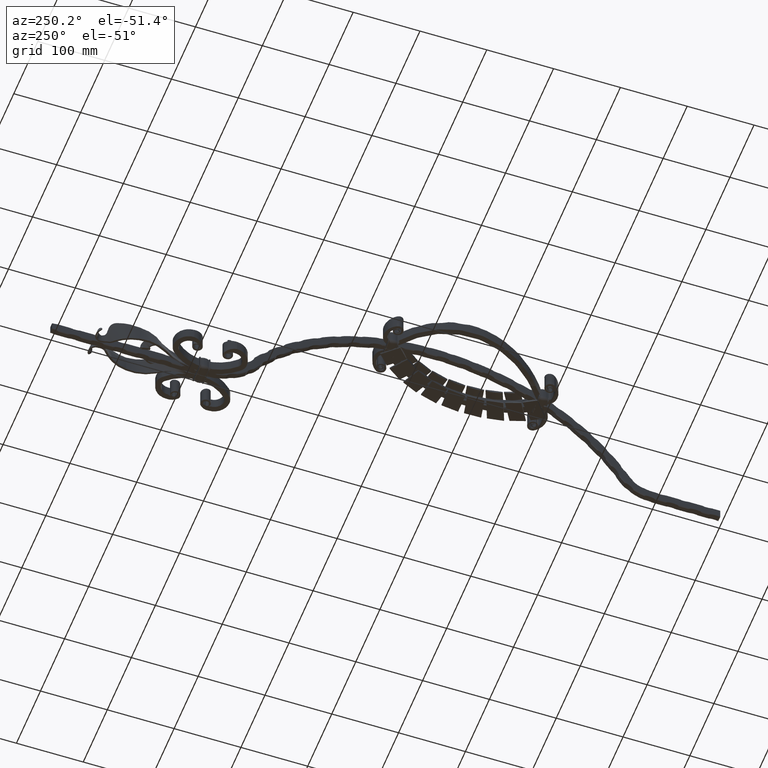
[diagram: clean part render]
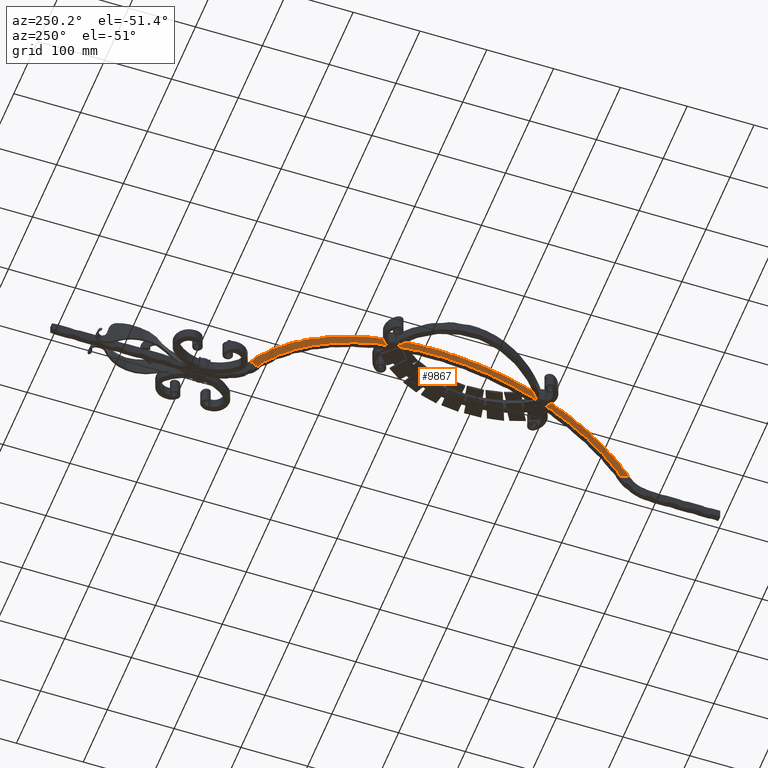
[diagram: same view with one face highlighted and labeled with its STEP entity id]
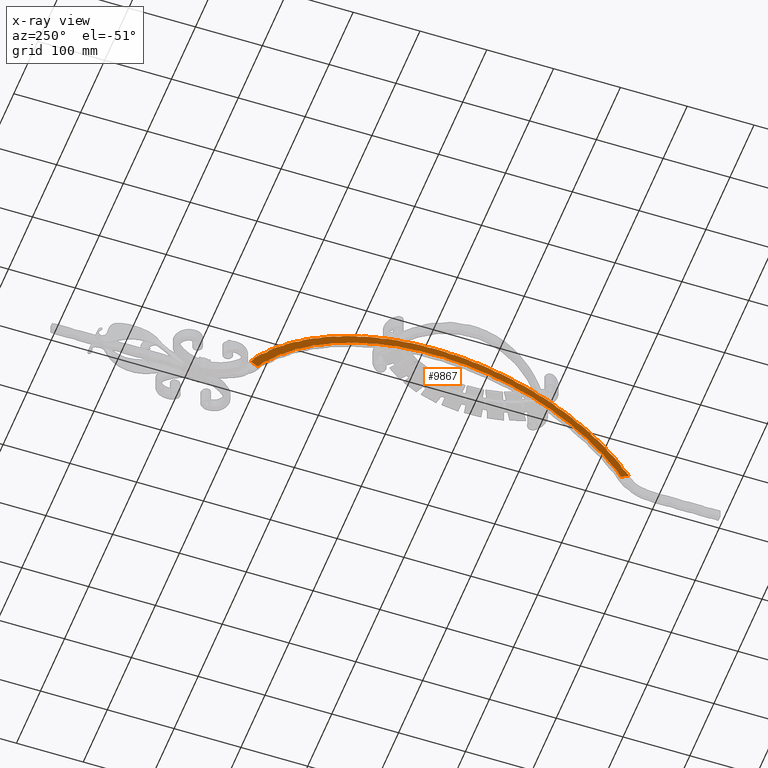
[diagram: x-ray of the same camera — body ghosted, the highlighted face saturated]
A machine part, auxiliary view. The second image highlights one B-rep face of the part: STEP entity #9867.
The next image is the same camera in x-ray: the body ghosted, the highlighted face saturated — about 0% of this face is hidden behind the body in this view.
In plain terms, the highlighted planar face has unit normal (-1, -0, 0).
Its self-contained STEP definition (entity closure, byte-faithful):
#152 = AXIS2_PLACEMENT_3D ( 'NONE', #6592, #6826, #24132 ) ;
#206 = AXIS2_PLACEMENT_3D ( 'NONE', #39800, #28356, #73636 ) ;
#332 = DIRECTION ( 'NONE',  ( 0.000000000000000000, 0.000000000000000000, 1.000000000000000000 ) ) ;
#465 = CARTESIAN_POINT ( 'NONE',  ( -4.000000000000000000, 426.4705882352941444, -147.6278396268994300 ) ) ;
#520 = ORIENTED_EDGE ( 'NONE', *, *, #7583, .T. ) ;
#575 = DIRECTION ( 'NONE',  ( 0.000000000000000000, 0.000000000000000000, 1.000000000000000000 ) ) ;
#640 = AXIS2_PLACEMENT_3D ( 'NONE', #55175, #4286, #9706 ) ;
#666 = CARTESIAN_POINT ( 'NONE',  ( -4.000000000000023093, 572.1140279110070423, 142.4949322133250575 ) ) ;
#719 = CARTESIAN_POINT ( 'NONE',  ( -4.000000000000048850, 687.3501513787601880, 45.56917845283773971 ) ) ;
#833 = DIRECTION ( 'NONE',  ( 3.336006684570783348E-17, 0.8325554022476037153, -0.5539417859200828076 ) ) ;
#1022 = CARTESIAN_POINT ( 'NONE',  ( -4.000000000000000888, 160.9058512339645688, 62.47733458781561211 ) ) ;
#1128 = CARTESIAN_POINT ( 'NONE',  ( -4.000000000000000000, 297.2928697591530636, 165.3928159530158268 ) ) ;
#1163 = AXIS2_PLACEMENT_3D ( 'NONE', #67733, #10081, #44641 ) ;
#1187 = DIRECTION ( 'NONE',  ( 0.000000000000000000, 0.000000000000000000, 1.000000000000000000 ) ) ;
#1226 = CIRCLE ( 'NONE', #8928, 324.6278396268995152 ) ;
#1257 = DIRECTION ( 'NONE',  ( -1.000000000000000000, -0.000000000000000000, 0.000000000000000000 ) ) ;
#1383 = AXIS2_PLACEMENT_3D ( 'NONE', #67014, #43651, #32452 ) ;
#1554 = CARTESIAN_POINT ( 'NONE',  ( -4.000000000000000000, 426.4705882352941444, -147.6278396268994300 ) ) ;
#1798 = DIRECTION ( 'NONE',  ( 1.000000000000000000, -6.526703566376200174E-17, -3.496812018500327494E-17 ) ) ;
#1874 = CARTESIAN_POINT ( 'NONE',  ( -4.000000000000000000, 426.4705882352941444, -147.6278396268994300 ) ) ;
#1943 = AXIS2_PLACEMENT_3D ( 'NONE', #63925, #12476, #40593 ) ;
#1967 = DIRECTION ( 'NONE',  ( 1.000000000000000000, 1.347094601856986619E-17, -1.166077757606807157E-18 ) ) ;
#1999 = CARTESIAN_POINT ( 'NONE',  ( -4.000000000000003553, 440.9842460692563009, 176.6753950117742704 ) ) ;
#2120 = AXIS2_PLACEMENT_3D ( 'NONE', #52678, #29789, #52197 ) ;
#2151 = CARTESIAN_POINT ( 'NONE',  ( -4.000000000000000888, 149.6171718922792877, 19.96441687910802187 ) ) ;
#2255 = ORIENTED_EDGE ( 'NONE', *, *, #65679, .T. ) ;
#2426 = CARTESIAN_POINT ( 'NONE',  ( -4.000000000000000888, 124.7524150278455437, 54.70178627800613924 ) ) ;
#2669 = EDGE_CURVE ( 'NONE', #49515, #11266, #54809, .T. ) ;
#2749 = AXIS2_PLACEMENT_3D ( 'NONE', #59353, #25774, #65578 ) ;
#2948 = CIRCLE ( 'NONE', #34234, 338.6278396268994015 ) ;
#2952 = DIRECTION ( 'NONE',  ( 0.000000000000000000, 0.03755121730541614161, -0.9992947043184414735 ) ) ;
#2996 = ORIENTED_EDGE ( 'NONE', *, *, #45693, .T. ) ;
#3055 = CARTESIAN_POINT ( 'NONE',  ( -4.000000000000000000, 426.4705882352941444, -147.6278396268994300 ) ) ;
#3252 = DIRECTION ( 'NONE',  ( 0.000000000000000000, 0.000000000000000000, 1.000000000000000000 ) ) ;
#3482 = DIRECTION ( 'NONE',  ( 0.000000000000000000, -5.420679557407433838E-14, 1.000000000000000000 ) ) ;
#3559 = AXIS2_PLACEMENT_3D ( 'NONE', #51046, #22943, #28675 ) ;
#3648 = AXIS2_PLACEMENT_3D ( 'NONE', #37031, #60420, #71622 ) ;
#3826 = CARTESIAN_POINT ( 'NONE',  ( -4.000000000000055955, 171.5220999674228324, 53.33111785137543848 ) ) ;
#3953 = VERTEX_POINT ( 'NONE', #67401 ) ;
#3957 = VERTEX_POINT ( 'NONE', #33328 ) ;
#3971 = AXIS2_PLACEMENT_3D ( 'NONE', #3055, #13947, #42803 ) ;
#4003 = CARTESIAN_POINT ( 'NONE',  ( -4.000000000000000000, 426.4705882352941444, -147.6278396268994300 ) ) ;
#4017 = DIRECTION ( 'NONE',  ( -1.000000000000000000, -0.000000000000000000, 0.000000000000000000 ) ) ;
#4022 = AXIS2_PLACEMENT_3D ( 'NONE', #52199, #34560, #575 ) ;
#4025 = CIRCLE ( 'NONE', #2749, 25.99999999999999289 ) ;
#4082 = VERTEX_POINT ( 'NONE', #56956 ) ;
#4208 = DIRECTION ( 'NONE',  ( 1.000000000000000000, 0.000000000000000000, -0.000000000000000000 ) ) ;
#4286 = DIRECTION ( 'NONE',  ( 1.000000000000000000, 3.676091962525594035E-17, -9.153497749603969293E-18 ) ) ;
#4457 = DIRECTION ( 'NONE',  ( -1.000000000000000000, -0.000000000000000000, 0.000000000000000000 ) ) ;
#4479 = DIRECTION ( 'NONE',  ( 0.000000000000000000, 0.000000000000000000, 1.000000000000000000 ) ) ;
#4534 = CIRCLE ( 'NONE', #55735, 338.6278396268994015 ) ;
#4636 = CIRCLE ( 'NONE', #10510, 26.00000000000000000 ) ;
#4825 = VERTEX_POINT ( 'NONE', #56300 ) ;
#5001 = CIRCLE ( 'NONE', #206, 25.99999999999999289 ) ;
#5082 = AXIS2_PLACEMENT_3D ( 'NONE', #56214, #73402, #73163 ) ;
#5288 = AXIS2_PLACEMENT_3D ( 'NONE', #54621, #8913, #43217 ) ;
#5568 = CIRCLE ( 'NONE', #49816, 26.00000000000000355 ) ;
#5569 = AXIS2_PLACEMENT_3D ( 'NONE', #56759, #22409, #22165 ) ;
#5864 = EDGE_CURVE ( 'NONE', #32729, #32261, #48781, .T. ) ;
#6104 = DIRECTION ( 'NONE',  ( 0.000000000000000000, 0.2452857819312131427, -0.9694508162781614313 ) ) ;
#6109 = CARTESIAN_POINT ( 'NONE',  ( -4.000000000000000000, 426.4705882352941444, -147.6278396268994300 ) ) ;
#6212 = AXIS2_PLACEMENT_3D ( 'NONE', #18482, #63772, #47360 ) ;
#6229 = DIRECTION ( 'NONE',  ( 0.000000000000000000, 0.000000000000000000, 1.000000000000000000 ) ) ;
#6244 = CIRCLE ( 'NONE', #28302, 25.99999999999996447 ) ;
#6247 = DIRECTION ( 'NONE',  ( 0.000000000000000000, 0.000000000000000000, 1.000000000000000000 ) ) ;
#6270 = CIRCLE ( 'NONE', #60920, 324.6278396268995152 ) ;
#6592 = CARTESIAN_POINT ( 'NONE',  ( -4.000000000000000000, 426.4705882352941444, -147.6278396268994300 ) ) ;
#6653 = ORIENTED_EDGE ( 'NONE', *, *, #37349, .T. ) ;
#6697 = DIRECTION ( 'NONE',  ( -1.000000000000000000, -0.000000000000000000, 0.000000000000000000 ) ) ;
#6784 = DIRECTION ( 'NONE',  ( 1.000000000000000000, 0.000000000000000000, -0.000000000000000000 ) ) ;
#6826 = DIRECTION ( 'NONE',  ( 1.000000000000000000, 0.000000000000000000, -0.000000000000000000 ) ) ;
#6851 = VERTEX_POINT ( 'NONE', #21097 ) ;
#6916 = ORIENTED_EDGE ( 'NONE', *, *, #68783, .T. ) ;
#7198 = DIRECTION ( 'NONE',  ( 1.000000000000000000, 0.000000000000000000, 0.000000000000000000 ) ) ;
#7243 = EDGE_CURVE ( 'NONE', #45264, #16695, #56076, .T. ) ;
#7252 = EDGE_CURVE ( 'NONE', #68606, #27000, #17846, .T. ) ;
#7269 = DIRECTION ( 'NONE',  ( 1.000000000000000000, -1.114785359418995452E-17, -7.966804709259143197E-19 ) ) ;
#7503 = VECTOR ( 'NONE', #22232, 1000.000000000000000 ) ;
#7508 = DIRECTION ( 'NONE',  ( 0.000000000000000000, 8.549967756163145212E-16, 1.000000000000000000 ) ) ;
#7583 = EDGE_CURVE ( 'NONE', #63597, #12480, #69383, .T. ) ;
#7645 = CIRCLE ( 'NONE', #55036, 338.6278396268994015 ) ;
#7669 = DIRECTION ( 'NONE',  ( 0.000000000000000000, -0.1718372646633504752, -0.9851253496246138441 ) ) ;
#7688 = CARTESIAN_POINT ( 'NONE',  ( -4.000000000000000000, 426.4705882352941444, -147.6278396268994300 ) ) ;
#7749 = DIRECTION ( 'NONE',  ( 1.000000000000000000, 4.382359191956283565E-17, -1.339321560717953740E-17 ) ) ;
#7785 = AXIS2_PLACEMENT_3D ( 'NONE', #18149, #1798, #833 ) ;
#8027 = CARTESIAN_POINT ( 'NONE',  ( -4.000000000000017764, 554.8015900863533716, 150.5573179928778416 ) ) ;
#8037 = DIRECTION ( 'NONE',  ( 3.336006684570780883E-17, -0.7197607560805576732, -0.6942221935420561651 ) ) ;
#8109 = DIRECTION ( 'NONE',  ( 0.000000000000000000, 0.6802587746895706333, 0.7329720318387625833 ) ) ;
#8316 = CARTESIAN_POINT ( 'NONE',  ( -4.000000000000000888, 294.8236193829861804, 191.2752965640353011 ) ) ;
#8451 = VERTEX_POINT ( 'NONE', #29553 ) ;
#8632 = CARTESIAN_POINT ( 'NONE',  ( -4.000000000000017764, 538.5316547730333241, 130.2770516016199736 ) ) ;
#8684 = CIRCLE ( 'NONE', #5082, 25.99999999999999289 ) ;
#8742 = ORIENTED_EDGE ( 'NONE', *, *, #66254, .T. ) ;
#8842 = VERTEX_POINT ( 'NONE', #28509 ) ;
#8913 = DIRECTION ( 'NONE',  ( 1.000000000000000000, 0.000000000000000000, 0.000000000000000000 ) ) ;
#8928 = AXIS2_PLACEMENT_3D ( 'NONE', #42434, #18798, #58588 ) ;
#8947 = EDGE_CURVE ( 'NONE', #39254, #49515, #26278, .T. ) ;
#9060 = CARTESIAN_POINT ( 'NONE',  ( -4.000000000000000000, 426.4705882352941444, -147.6278396268994300 ) ) ;
#9114 = DIRECTION ( 'NONE',  ( 0.000000000000000000, 0.1370943074738605050, 0.9905579997447209184 ) ) ;
#9187 = CIRCLE ( 'NONE', #17087, 324.6278396268995152 ) ;
#9190 = ORIENTED_EDGE ( 'NONE', *, *, #60034, .T. ) ;
#9523 = CARTESIAN_POINT ( 'NONE',  ( -4.000000000000000000, 426.4705882352941444, -147.6278396268994300 ) ) ;
#9602 = CARTESIAN_POINT ( 'NONE',  ( -4.000000000000000888, 581.9442069146263066, 181.0027020683511694 ) ) ;
#9632 = CARTESIAN_POINT ( 'NONE',  ( -4.000000000000000888, 513.3135617049681514, 179.6749433269376652 ) ) ;
#9706 = DIRECTION ( 'NONE',  ( 0.000000000000000000, -0.4689274135762495632, -0.8832367071157589677 ) ) ;
#9784 = ORIENTED_EDGE ( 'NONE', *, *, #23700, .T. ) ;
#9867 = ADVANCED_FACE ( 'NONE', ( #47019 ), #27550, .T. ) ;
#10081 = DIRECTION ( 'NONE',  ( 1.000000000000000000, -6.034991296655652333E-17, -2.835915265374370119E-17 ) ) ;
#10389 = VERTEX_POINT ( 'NONE', #52210 ) ;
#10478 = AXIS2_PLACEMENT_3D ( 'NONE', #42225, #53642, #3482 ) ;
#10507 = CARTESIAN_POINT ( 'NONE',  ( -4.000000000000000000, 426.4705882352941444, -147.6278396268994300 ) ) ;
#10510 = AXIS2_PLACEMENT_3D ( 'NONE', #19333, #7269, #30033 ) ;
#10638 = CIRCLE ( 'NONE', #55345, 25.99999999999999289 ) ;
#10916 = CARTESIAN_POINT ( 'NONE',  ( -4.000000000000000000, 426.4705882352941444, -147.6278396268994300 ) ) ;
#11021 = CIRCLE ( 'NONE', #10478, 324.6278396268995152 ) ;
#11266 = VERTEX_POINT ( 'NONE', #19701 ) ;
#11267 = ORIENTED_EDGE ( 'NONE', *, *, #5864, .T. ) ;
#11351 = DIRECTION ( 'NONE',  ( -1.000000000000000000, -0.000000000000000000, 0.000000000000000000 ) ) ;
#11525 = CARTESIAN_POINT ( 'NONE',  ( -4.000000000000013323, 352.9085654521753099, 142.8381980754930396 ) ) ;
#11555 = VERTEX_POINT ( 'NONE', #61966 ) ;
#11886 = CARTESIAN_POINT ( 'NONE',  ( -4.000000000000000888, 220.6701216781705455, 121.2866109614825660 ) ) ;
#11914 = DIRECTION ( 'NONE',  ( 1.000000000000000000, -2.709751309814805919E-17, -4.832186591787698804E-18 ) ) ;
#11955 = VERTEX_POINT ( 'NONE', #61148 ) ;
#12132 = CARTESIAN_POINT ( 'NONE',  ( -4.000000000000020428, 321.2245306770981870, 159.4657969553079795 ) ) ;
#12143 = VERTEX_POINT ( 'NONE', #50667 ) ;
#12278 = CARTESIAN_POINT ( 'NONE',  ( -4.000000000000000888, 209.0349680773688590, 111.9690880454432573 ) ) ;
#12325 = CIRCLE ( 'NONE', #60325, 26.00000000000001421 ) ;
#12386 = CARTESIAN_POINT ( 'NONE',  ( -4.000000000000020428, 322.8061072014730257, 133.5139450811633139 ) ) ;
#12434 = AXIS2_PLACEMENT_3D ( 'NONE', #57164, #29031, #68874 ) ;
#12476 = DIRECTION ( 'NONE',  ( 1.000000000000000000, 0.000000000000000000, -0.000000000000000000 ) ) ;
#12480 = VERTEX_POINT ( 'NONE', #3826 ) ;
#12614 = DIRECTION ( 'NONE',  ( 0.000000000000000000, 0.8143712872288110249, 0.5803442138397603145 ) ) ;
#12628 = AXIS2_PLACEMENT_3D ( 'NONE', #33826, #40047, #332 ) ;
#12731 = DIRECTION ( 'NONE',  ( 0.000000000000000000, 0.000000000000000000, 1.000000000000000000 ) ) ;
#12839 = CIRCLE ( 'NONE', #44066, 338.6278396268994015 ) ;
#12905 = DIRECTION ( 'NONE',  ( -1.000000000000000000, -0.000000000000000000, 0.000000000000000000 ) ) ;
#13248 = CARTESIAN_POINT ( 'NONE',  ( -4.000000000000000888, 146.7878555126258959, 84.31038743922103151 ) ) ;
#13479 = ORIENTED_EDGE ( 'NONE', *, *, #16670, .T. ) ;
#13745 = DIRECTION ( 'NONE',  ( 1.000000000000000000, 0.000000000000000000, 0.000000000000000000 ) ) ;
#13800 = ORIENTED_EDGE ( 'NONE', *, *, #60694, .T. ) ;
#13820 = ORIENTED_EDGE ( 'NONE', *, *, #68327, .T. ) ;
#13896 = CARTESIAN_POINT ( 'NONE',  ( -4.000000000000000000, 426.4705882352941444, -147.6278396268994300 ) ) ;
#13947 = DIRECTION ( 'NONE',  ( 1.000000000000000000, 0.000000000000000000, -0.000000000000000000 ) ) ;
#13960 = AXIS2_PLACEMENT_3D ( 'NONE', #42176, #54064, #54316 ) ;
#14081 = DIRECTION ( 'NONE',  ( 1.000000000000000000, -2.943776032770732086E-18, -5.529068489316881699E-20 ) ) ;
#14146 = CARTESIAN_POINT ( 'NONE',  ( -4.000000000000027534, 594.1225014173206773, 100.7627982588815172 ) ) ;
#14233 = DIRECTION ( 'NONE',  ( 0.000000000000000000, -0.3628234939914710133, 0.9318578819797689317 ) ) ;
#14323 = ORIENTED_EDGE ( 'NONE', *, *, #50315, .T. ) ;
#14428 = CIRCLE ( 'NONE', #16980, 338.6278396268994015 ) ;
#14442 = ORIENTED_EDGE ( 'NONE', *, *, #22311, .T. ) ;
#14483 = CARTESIAN_POINT ( 'NONE',  ( -4.000000000000059508, 160.4938091986029747, 38.48929358252643596 ) ) ;
#14531 = VERTEX_POINT ( 'NONE', #41275 ) ;
#15109 = ORIENTED_EDGE ( 'NONE', *, *, #35821, .T. ) ;
#15148 = CIRCLE ( 'NONE', #54314, 26.00000000000000711 ) ;
#15448 = CIRCLE ( 'NONE', #20314, 25.99999999999998579 ) ;
#15536 = DIRECTION ( 'NONE',  ( 1.000000000000000000, 0.000000000000000000, 0.000000000000000000 ) ) ;
#15570 = ORIENTED_EDGE ( 'NONE', *, *, #58371, .T. ) ;
#15677 = AXIS2_PLACEMENT_3D ( 'NONE', #30706, #53343, #47425 ) ;
#15751 = ORIENTED_EDGE ( 'NONE', *, *, #18588, .T. ) ;
#15755 = CIRCLE ( 'NONE', #72244, 25.99999999999999289 ) ;
#15998 = CARTESIAN_POINT ( 'NONE',  ( -4.000000000000000888, 702.9278986532050340, 46.01524705753612210 ) ) ;
#16009 = EDGE_CURVE ( 'NONE', #65866, #69060, #2948, .T. ) ;
#16116 = EDGE_CURVE ( 'NONE', #31448, #28160, #61626, .T. ) ;
#16430 = AXIS2_PLACEMENT_3D ( 'NONE', #55342, #27483, #44435 ) ;
#16543 = CARTESIAN_POINT ( 'NONE',  ( -4.000000000000047962, 205.1122891533242978, 89.82476130298131523 ) ) ;
#16670 = EDGE_CURVE ( 'NONE', #18717, #27944, #72306, .T. ) ;
#16695 = VERTEX_POINT ( 'NONE', #52230 ) ;
#16980 = AXIS2_PLACEMENT_3D ( 'NONE', #71543, #4457, #44205 ) ;
#17004 = CARTESIAN_POINT ( 'NONE',  ( -4.000000000000000000, 397.3075476709288409, 189.7418846155439383 ) ) ;
#17041 = CIRCLE ( 'NONE', #65046, 338.6278396268994015 ) ;
#17087 = AXIS2_PLACEMENT_3D ( 'NONE', #1874, #58258, #52293 ) ;
#17286 = ORIENTED_EDGE ( 'NONE', *, *, #41514, .T. ) ;
#17328 = EDGE_CURVE ( 'NONE', #32261, #71772, #45539, .T. ) ;
#17530 = EDGE_CURVE ( 'NONE', #58254, #70039, #65118, .T. ) ;
#17537 = DIRECTION ( 'NONE',  ( -1.000000000000000000, -0.000000000000000000, 0.000000000000000000 ) ) ;
#17767 = VERTEX_POINT ( 'NONE', #54763 ) ;
#17781 = DIRECTION ( 'NONE',  ( 1.000000000000000000, 0.000000000000000000, 0.000000000000000000 ) ) ;
#17846 = CIRCLE ( 'NONE', #67339, 324.6278396268995152 ) ;
#18149 = CARTESIAN_POINT ( 'NONE',  ( -4.000000000000059508, 176.7844507586344207, 18.22565625941544099 ) ) ;
#18305 = ORIENTED_EDGE ( 'NONE', *, *, #60129, .T. ) ;
#18482 = CARTESIAN_POINT ( 'NONE',  ( -4.000000000000000888, 199.2825218319721330, 136.0707434290605136 ) ) ;
#18588 = EDGE_CURVE ( 'NONE', #69986, #28667, #4636, .T. ) ;
#18717 = VERTEX_POINT ( 'NONE', #31029 ) ;
#18739 = ORIENTED_EDGE ( 'NONE', *, *, #42157, .T. ) ;
#18798 = DIRECTION ( 'NONE',  ( 1.000000000000000000, 0.000000000000000000, -0.000000000000000000 ) ) ;
#19333 = CARTESIAN_POINT ( 'NONE',  ( -4.000000000000007994, 383.8232628775402304, 148.9522122834969480 ) ) ;
#19467 = CIRCLE ( 'NONE', #29707, 324.6278396268995152 ) ;
#19495 = AXIS2_PLACEMENT_3D ( 'NONE', #67500, #33434, #39149 ) ;
#19507 = CIRCLE ( 'NONE', #23411, 25.99999999999999645 ) ;
#19515 = ORIENTED_EDGE ( 'NONE', *, *, #59109, .T. ) ;
#19701 = CARTESIAN_POINT ( 'NONE',  ( -4.000000000000000888, 650.8479176843302412, 105.9931922290959392 ) ) ;
#19731 = DIRECTION ( 'NONE',  ( 0.000000000000000000, 0.000000000000000000, 1.000000000000000000 ) ) ;
#19893 = ORIENTED_EDGE ( 'NONE', *, *, #34952, .T. ) ;
#20030 = EDGE_CURVE ( 'NONE', #49240, #65866, #54041, .T. ) ;
#20314 = AXIS2_PLACEMENT_3D ( 'NONE', #2426, #35928, #36410 ) ;
#20386 = CARTESIAN_POINT ( 'NONE',  ( -4.000000000000000000, 564.7962019197202608, 161.4592651982744371 ) ) ;
#20389 = VERTEX_POINT ( 'NONE', #45311 ) ;
#20516 = CIRCLE ( 'NONE', #32912, 324.6278396268995152 ) ;
#20654 = DIRECTION ( 'NONE',  ( 1.000000000000000000, 0.000000000000000000, -0.000000000000000000 ) ) ;
#21008 = CIRCLE ( 'NONE', #5569, 25.99999999999998579 ) ;
#21097 = CARTESIAN_POINT ( 'NONE',  ( -4.000000000000047073, 677.7574081055164470, 57.89142569958625728 ) ) ;
#21123 = VERTEX_POINT ( 'NONE', #34496 ) ;
#21210 = ORIENTED_EDGE ( 'NONE', *, *, #60007, .T. ) ;
#21229 = EDGE_CURVE ( 'NONE', #72093, #41746, #52203, .T. ) ;
#21238 = ORIENTED_EDGE ( 'NONE', *, *, #31114, .T. ) ;
#21314 = CARTESIAN_POINT ( 'NONE',  ( -4.000000000000000888, 148.7617034113778516, 20.48227176050276555 ) ) ;
#21350 = CIRCLE ( 'NONE', #3971, 324.6278396268995152 ) ;
#21351 = DIRECTION ( 'NONE',  ( 0.000000000000000000, 1.709993551232629042E-15, 1.000000000000000000 ) ) ;
#21720 = ORIENTED_EDGE ( 'NONE', *, *, #43037, .T. ) ;
#21952 = AXIS2_PLACEMENT_3D ( 'NONE', #33901, #62495, #40364 ) ;
#21975 = EDGE_CURVE ( 'NONE', #56309, #28464, #30775, .T. ) ;
#21991 = EDGE_CURVE ( 'NONE', #22427, #6851, #65502, .T. ) ;
#22165 = DIRECTION ( 'NONE',  ( 0.000000000000000000, 0.2370149812904263076, 0.9715059951662156079 ) ) ;
#22167 = VERTEX_POINT ( 'NONE', #49479 ) ;
#22173 = DIRECTION ( 'NONE',  ( 1.000000000000000000, -1.922884150880462241E-17, -2.394861240572535470E-18 ) ) ;
#22219 = CIRCLE ( 'NONE', #12434, 324.6278396268995152 ) ;
#22232 = DIRECTION ( 'NONE',  ( 1.084202172485504434E-16, 0.8190607261809106365, 0.5737068300342950122 ) ) ;
#22311 = EDGE_CURVE ( 'NONE', #51727, #31151, #35221, .T. ) ;
#22326 = CARTESIAN_POINT ( 'NONE',  ( -4.000000000000047962, 194.0833816396042550, 79.04245059985295541 ) ) ;
#22330 = AXIS2_PLACEMENT_3D ( 'NONE', #35877, #30143, #41631 ) ;
#22409 = DIRECTION ( 'NONE',  ( 1.000000000000000000, 0.000000000000000000, 0.000000000000000000 ) ) ;
#22427 = VERTEX_POINT ( 'NONE', #719 ) ;
#22525 = EDGE_CURVE ( 'NONE', #22167, #60231, #45055, .T. ) ;
#22754 = ORIENTED_EDGE ( 'NONE', *, *, #51531, .T. ) ;
#22943 = DIRECTION ( 'NONE',  ( 1.000000000000000000, 0.000000000000000000, 0.000000000000000000 ) ) ;
#23200 = CARTESIAN_POINT ( 'NONE',  ( -4.000000000000000888, 343.2437165539460011, 180.6130804310932092 ) ) ;
#23205 = CARTESIAN_POINT ( 'NONE',  ( -4.000000000000007994, 372.9101938387357222, 172.5510453935108615 ) ) ;
#23208 = EDGE_CURVE ( 'NONE', #58779, #24997, #5001, .T. ) ;
#23314 = DIRECTION ( 'NONE',  ( 0.000000000000000000, 0.3456596532675747513, -0.9383599544433575135 ) ) ;
#23319 = EDGE_CURVE ( 'NONE', #65537, #70100, #25365, .T. ) ;
#23349 = CIRCLE ( 'NONE', #36002, 324.6278396268995152 ) ;
#23400 = EDGE_CURVE ( 'NONE', #60628, #48987, #27207, .T. ) ;
#23411 = AXIS2_PLACEMENT_3D ( 'NONE', #8632, #26506, #59827 ) ;
#23590 = VERTEX_POINT ( 'NONE', #38539 ) ;
#23700 = EDGE_CURVE ( 'NONE', #42282, #60628, #28893, .T. ) ;
#23855 = CARTESIAN_POINT ( 'NONE',  ( -4.000000000000000000, 532.8414154462802799, 173.8594243336370084 ) ) ;
#23880 = CARTESIAN_POINT ( 'NONE',  ( -4.000000000000039968, 642.3292357293497616, 60.29621762772961802 ) ) ;
#24067 = VERTEX_POINT ( 'NONE', #24520 ) ;
#24132 = DIRECTION ( 'NONE',  ( 0.000000000000000000, 0.000000000000000000, 1.000000000000000000 ) ) ;
#24258 = AXIS2_PLACEMENT_3D ( 'NONE', #44317, #47469, #48942 ) ;
#24287 = EDGE_CURVE ( 'NONE', #8842, #57796, #63572, .T. ) ;
#24491 = EDGE_CURVE ( 'NONE', #28160, #22167, #12839, .T. ) ;
#24520 = CARTESIAN_POINT ( 'NONE',  ( -4.000000000000012434, 522.7427759057951562, 162.3961919286620912 ) ) ;
#24645 = VERTEX_POINT ( 'NONE', #30663 ) ;
#24748 = ORIENTED_EDGE ( 'NONE', *, *, #65033, .T. ) ;
#24820 = CARTESIAN_POINT ( 'NONE',  ( -4.000000000000000000, 426.4705882352941444, -147.6278396268994300 ) ) ;
#24997 = VERTEX_POINT ( 'NONE', #27439 ) ;
#25056 = CIRCLE ( 'NONE', #46235, 324.6278396268995152 ) ;
#25365 = CIRCLE ( 'NONE', #71173, 324.6278396268995152 ) ;
#25511 = VERTEX_POINT ( 'NONE', #31328 ) ;
#25566 = DIRECTION ( 'NONE',  ( 0.000000000000000000, -0.5590198455846863146, -0.8291542752965057606 ) ) ;
#25722 = CARTESIAN_POINT ( 'NONE',  ( -4.000000000000000000, 465.9339984276574569, 188.6926221745948453 ) ) ;
#25774 = DIRECTION ( 'NONE',  ( 1.000000000000000000, -3.466698598629286348E-17, -8.081744660857514412E-18 ) ) ;
#25940 = AXIS2_PLACEMENT_3D ( 'NONE', #12386, #11914, #23314 ) ;
#26008 = EDGE_CURVE ( 'NONE', #24067, #49458, #5568, .T. ) ;
#26105 = AXIS2_PLACEMENT_3D ( 'NONE', #32797, #72625, #21351 ) ;
#26111 = ORIENTED_EDGE ( 'NONE', *, *, #37811, .T. ) ;
#26278 = CIRCLE ( 'NONE', #3559, 25.99999999999996447 ) ;
#26286 = DIRECTION ( 'NONE',  ( 1.000000000000000000, -5.476643334162709815E-17, -2.230264353325078280E-17 ) ) ;
#26336 = CARTESIAN_POINT ( 'NONE',  ( -4.000000000000000888, 248.8765222911063120, 140.6934421262735952 ) ) ;
#26455 = CARTESIAN_POINT ( 'NONE',  ( -4.000000000000000000, 426.4705882352941444, -147.6278396268994300 ) ) ;
#26481 = ORIENTED_EDGE ( 'NONE', *, *, #21991, .T. ) ;
#26506 = DIRECTION ( 'NONE',  ( 1.000000000000000000, 2.929234958797520628E-17, -5.678298611878488443E-18 ) ) ;
#26535 = DIRECTION ( 'NONE',  ( 3.336006684570783964E-17, 0.6986082557097207379, -0.7155043710937208923 ) ) ;
#26552 = DIRECTION ( 'NONE',  ( -1.000000000000000000, -0.000000000000000000, 0.000000000000000000 ) ) ;
#26592 = EDGE_CURVE ( 'NONE', #3953, #23590, #17041, .T. ) ;
#26624 = CARTESIAN_POINT ( 'NONE',  ( -4.000000000000039968, 231.2164131104326259, 111.7156417971338414 ) ) ;
#26696 = AXIS2_PLACEMENT_3D ( 'NONE', #13248, #53019, #70466 ) ;
#26753 = ORIENTED_EDGE ( 'NONE', *, *, #34082, .T. ) ;
#26832 = DIRECTION ( 'NONE',  ( 0.000000000000000000, 0.000000000000000000, 1.000000000000000000 ) ) ;
#27000 = VERTEX_POINT ( 'NONE', #12132 ) ;
#27207 = CIRCLE ( 'NONE', #4022, 338.6278396268994015 ) ;
#27379 = CIRCLE ( 'NONE', #12628, 338.6278396268994015 ) ;
#27439 = CARTESIAN_POINT ( 'NONE',  ( -4.000000000000000888, 194.5759532003528136, 99.13863299933164797 ) ) ;
#27479 = AXIS2_PLACEMENT_3D ( 'NONE', #23880, #59454, #8037 ) ;
#27483 = DIRECTION ( 'NONE',  ( 1.000000000000000000, 0.000000000000000000, 0.000000000000000000 ) ) ;
#27541 = DIRECTION ( 'NONE',  ( -1.000000000000000000, -0.000000000000000000, 0.000000000000000000 ) ) ;
#27550 = PLANE ( 'NONE',  #45031 ) ;
#27633 = CIRCLE ( 'NONE', #21952, 26.00000000000000355 ) ;
#27944 = VERTEX_POINT ( 'NONE', #54594 ) ;
#27974 = ORIENTED_EDGE ( 'NONE', *, *, #61207, .T. ) ;
#27993 = ORIENTED_EDGE ( 'NONE', *, *, #23400, .T. ) ;
#28051 = CARTESIAN_POINT ( 'NONE',  ( -4.000000000000000888, 278.9117438975272876, 157.1593012240291500 ) ) ;
#28064 = VERTEX_POINT ( 'NONE', #55025 ) ;
#28160 = VERTEX_POINT ( 'NONE', #11886 ) ;
#28302 = AXIS2_PLACEMENT_3D ( 'NONE', #9602, #15536, #49617 ) ;
#28356 = DIRECTION ( 'NONE',  ( 1.000000000000000000, 0.000000000000000000, 0.000000000000000000 ) ) ;
#28365 = ORIENTED_EDGE ( 'NONE', *, *, #26592, .T. ) ;
#28464 = VERTEX_POINT ( 'NONE', #25722 ) ;
#28509 = CARTESIAN_POINT ( 'NONE',  ( -4.000000000000002665, 421.7007725987592153, 176.9649562260298694 ) ) ;
#28667 = VERTEX_POINT ( 'NONE', #23205 ) ;
#28675 = DIRECTION ( 'NONE',  ( 0.000000000000000000, 0.6022774137159014884, 0.7982868638075443224 ) ) ;
#28893 = CIRCLE ( 'NONE', #35830, 25.99999999999997868 ) ;
#28903 = DIRECTION ( 'NONE',  ( -1.000000000000000000, -0.000000000000000000, 0.000000000000000000 ) ) ;
#29031 = DIRECTION ( 'NONE',  ( 1.000000000000000000, 0.000000000000000000, -0.000000000000000000 ) ) ;
#29079 = CARTESIAN_POINT ( 'NONE',  ( -4.000000000000000000, 426.4705882352941444, -147.6278396268994300 ) ) ;
#29159 = ORIENTED_EDGE ( 'NONE', *, *, #65349, .T. ) ;
#29553 = CARTESIAN_POINT ( 'NONE',  ( -4.000000000000000000, 499.7756479439327677, 182.9703787462400726 ) ) ;
#29617 = AXIS2_PLACEMENT_3D ( 'NONE', #13896, #37249, #3252 ) ;
#29707 = AXIS2_PLACEMENT_3D ( 'NONE', #24820, #64655, #47742 ) ;
#29789 = DIRECTION ( 'NONE',  ( 1.000000000000000000, 0.000000000000000000, -0.000000000000000000 ) ) ;
#29966 = DIRECTION ( 'NONE',  ( 1.000000000000000000, 0.000000000000000000, 0.000000000000000000 ) ) ;
#29977 = CARTESIAN_POINT ( 'NONE',  ( -4.000000000000000888, 546.1190296207583970, 169.1576781045937423 ) ) ;
#30033 = DIRECTION ( 'NONE',  ( 0.000000000000000000, 0.1422035739622441175, -0.9898374328910605202 ) ) ;
#30143 = DIRECTION ( 'NONE',  ( -1.000000000000000000, -0.000000000000000000, 0.000000000000000000 ) ) ;
#30181 = VERTEX_POINT ( 'NONE', #31765 ) ;
#30475 = AXIS2_PLACEMENT_3D ( 'NONE', #66636, #38287, #72634 ) ;
#30479 = DIRECTION ( 'NONE',  ( 1.000000000000000000, 0.000000000000000000, -0.000000000000000000 ) ) ;
#30663 = CARTESIAN_POINT ( 'NONE',  ( -4.000000000000000888, 170.8561549893203164, 74.47590929850862551 ) ) ;
#30706 = CARTESIAN_POINT ( 'NONE',  ( -4.000000000000000888, 365.8832331055577356, 210.9057764810751223 ) ) ;
#30738 = ORIENTED_EDGE ( 'NONE', *, *, #69715, .T. ) ;
#30775 = CIRCLE ( 'NONE', #29617, 338.6278396268994015 ) ;
#31029 = CARTESIAN_POINT ( 'NONE',  ( -4.000000000000024869, 276.0778751193087146, 140.0616911218590701 ) ) ;
#31035 = DIRECTION ( 'NONE',  ( 1.000000000000000000, 6.182390948130402160E-17, -3.019233214362766980E-17 ) ) ;
#31114 = EDGE_CURVE ( 'NONE', #71424, #55530, #50647, .T. ) ;
#31151 = VERTEX_POINT ( 'NONE', #17004 ) ;
#31213 = AXIS2_PLACEMENT_3D ( 'NONE', #43463, #26286, #26535 ) ;
#31328 = CARTESIAN_POINT ( 'NONE',  ( -4.000000000000003553, 455.8206251369056190, 175.6704894666825396 ) ) ;
#31448 = VERTEX_POINT ( 'NONE', #12278 ) ;
#31549 = CIRCLE ( 'NONE', #59819, 26.00000000000000000 ) ;
#31765 = CARTESIAN_POINT ( 'NONE',  ( -4.000000000000000000, 363.2271939935233718, 185.0417965816987476 ) ) ;
#31982 = DIRECTION ( 'NONE',  ( 0.000000000000000000, -0.2742614153810265520, -0.9616551752230088068 ) ) ;
#32261 = VERTEX_POINT ( 'NONE', #666 ) ;
#32288 = CARTESIAN_POINT ( 'NONE',  ( -4.000000000000000000, 426.4705882352941444, -147.6278396268994300 ) ) ;
#32452 = DIRECTION ( 'NONE',  ( 3.336006684570782115E-17, -0.6429398288101917380, -0.7659166903322588427 ) ) ;
#32548 = CARTESIAN_POINT ( 'NONE',  ( -4.000000000000000000, 149.6171718922792877, 19.96441687910803964 ) ) ;
#32667 = CIRCLE ( 'NONE', #16430, 25.99999999999996803 ) ;
#32729 = VERTEX_POINT ( 'NONE', #49277 ) ;
#32797 = CARTESIAN_POINT ( 'NONE',  ( -4.000000000000000000, 426.4705882352941444, -147.6278396268994300 ) ) ;
#32912 = AXIS2_PLACEMENT_3D ( 'NONE', #26455, #71488, #19731 ) ;
#33244 = VERTEX_POINT ( 'NONE', #35647 ) ;
#33328 = CARTESIAN_POINT ( 'NONE',  ( -4.000000000000000888, 685.5360490622043699, 70.44072935295557158 ) ) ;
#33434 = DIRECTION ( 'NONE',  ( 1.000000000000000000, 0.000000000000000000, -0.000000000000000000 ) ) ;
#33462 = EDGE_CURVE ( 'NONE', #16695, #43789, #6270, .T. ) ;
#33669 = VERTEX_POINT ( 'NONE', #16543 ) ;
#33787 = CARTESIAN_POINT ( 'NONE',  ( -4.000000000000000888, 547.8345694604861364, 195.1010187348654483 ) ) ;
#33826 = CARTESIAN_POINT ( 'NONE',  ( -4.000000000000000000, 426.4705882352941444, -147.6278396268994300 ) ) ;
#33891 = CARTESIAN_POINT ( 'NONE',  ( -4.000000000000000888, 624.0977213987470122, 127.3491230590244641 ) ) ;
#33901 = CARTESIAN_POINT ( 'NONE',  ( -4.000000000000003553, 446.7187904441216233, 151.3156828522740796 ) ) ;
#33942 = DIRECTION ( 'NONE',  ( -1.000000000000000000, -0.000000000000000000, 0.000000000000000000 ) ) ;
#34082 = EDGE_CURVE ( 'NONE', #11266, #3953, #69640, .T. ) ;
#34234 = AXIS2_PLACEMENT_3D ( 'NONE', #57793, #17537, #35146 ) ;
#34430 = CIRCLE ( 'NONE', #45553, 338.6278396268994015 ) ;
#34434 = ORIENTED_EDGE ( 'NONE', *, *, #24491, .T. ) ;
#34496 = CARTESIAN_POINT ( 'NONE',  ( -4.000000000000000888, 692.3605022986425865, 38.61336918633054438 ) ) ;
#34560 = DIRECTION ( 'NONE',  ( -1.000000000000000000, -0.000000000000000000, 0.000000000000000000 ) ) ;
#34952 = EDGE_CURVE ( 'NONE', #28667, #69920, #25056, .T. ) ;
#35146 = DIRECTION ( 'NONE',  ( 0.000000000000000000, 0.000000000000000000, 1.000000000000000000 ) ) ;
#35173 = ORIENTED_EDGE ( 'NONE', *, *, #20030, .T. ) ;
#35221 = CIRCLE ( 'NONE', #37247, 338.6278396268994015 ) ;
#35232 = EDGE_LOOP ( 'NONE', ( #53389, #58307, #58294, #69988, #53848, #40263, #22754, #39028, #42944, #13820, #66009, #34434, #53079, #55978, #35173, #42800, #26111, #29159, #70893, #21210, #8742, #14442, #18305, #52120, #13800, #59366, #6916, #63285, #18739, #30738, #9784, #27993, #70892, #21720, #36195, #27974, #67686, #41615, #26753, #28365, #53387, #19515, #35693, #45615, #15570, #26481, #70889, #60057, #68172, #21238, #39871, #2996, #14323, #11267, #55084, #6653, #68953, #40699, #58402, #47716, #51919, #58995, #39937, #71564, #70745, #15751, #19893, #37607, #39475, #17286, #2255, #68209, #13479, #9190, #35427, #55906, #24748, #73249, #51484, #520, #15109 ) ) ;
#35269 = AXIS2_PLACEMENT_3D ( 'NONE', #66709, #71700, #37597 ) ;
#35427 = ORIENTED_EDGE ( 'NONE', *, *, #23319, .T. ) ;
#35647 = CARTESIAN_POINT ( 'NONE',  ( -4.000000000000039968, 219.2213701078147210, 102.2341139522248170 ) ) ;
#35669 = VERTEX_POINT ( 'NONE', #1022 ) ;
#35693 = ORIENTED_EDGE ( 'NONE', *, *, #21229, .T. ) ;
#35712 = DIRECTION ( 'NONE',  ( 0.000000000000000000, 0.03575510241554029356, 0.9993605818978724686 ) ) ;
#35821 = EDGE_CURVE ( 'NONE', #12480, #45264, #20516, .T. ) ;
#35830 = AXIS2_PLACEMENT_3D ( 'NONE', #33787, #61645, #67874 ) ;
#35877 = CARTESIAN_POINT ( 'NONE',  ( -4.000000000000000000, 426.4705882352941444, -147.6278396268994300 ) ) ;
#35905 = CARTESIAN_POINT ( 'NONE',  ( -4.000000000000000000, 426.4705882352941444, -147.6278396268994300 ) ) ;
#35928 = DIRECTION ( 'NONE',  ( 1.000000000000000000, 0.000000000000000000, 0.000000000000000000 ) ) ;
#36002 = AXIS2_PLACEMENT_3D ( 'NONE', #62545, #39174, #67523 ) ;
#36195 = ORIENTED_EDGE ( 'NONE', *, *, #67309, .T. ) ;
#36241 = EDGE_CURVE ( 'NONE', #24645, #58779, #65928, .T. ) ;
#36410 = DIRECTION ( 'NONE',  ( 0.000000000000000000, -0.8315454792328940137, 0.5554566733484588292 ) ) ;
#36510 = CARTESIAN_POINT ( 'NONE',  ( -4.000000000000047073, 662.9846723376983846, 36.49595239483718245 ) ) ;
#36680 = CIRCLE ( 'NONE', #49015, 338.6278396268994015 ) ;
#36701 = AXIS2_PLACEMENT_3D ( 'NONE', #69444, #46100, #58218 ) ;
#37031 = CARTESIAN_POINT ( 'NONE',  ( -4.000000000000000888, 402.5397985225777120, 215.2099734921247887 ) ) ;
#37131 = EDGE_CURVE ( 'NONE', #73722, #8842, #22219, .T. ) ;
#37247 = AXIS2_PLACEMENT_3D ( 'NONE', #46218, #6697, #6229 ) ;
#37249 = DIRECTION ( 'NONE',  ( -1.000000000000000000, -0.000000000000000000, 0.000000000000000000 ) ) ;
#37349 = EDGE_CURVE ( 'NONE', #71772, #72738, #19507, .T. ) ;
#37597 = DIRECTION ( 'NONE',  ( 0.000000000000000000, -0.2662797601763340904, 0.9638957875830945765 ) ) ;
#37607 = ORIENTED_EDGE ( 'NONE', *, *, #44278, .T. ) ;
#37646 = CARTESIAN_POINT ( 'NONE',  ( -4.000000000000000888, 479.6365401641203903, 186.8003220549225034 ) ) ;
#37811 = EDGE_CURVE ( 'NONE', #69060, #10389, #10638, .T. ) ;
#37865 = DIRECTION ( 'NONE',  ( -1.000000000000000000, -0.000000000000000000, 0.000000000000000000 ) ) ;
#37959 = CARTESIAN_POINT ( 'NONE',  ( -4.000000000000012434, 508.7224999765480788, 140.5002593641930844 ) ) ;
#38033 = EDGE_CURVE ( 'NONE', #50351, #62908, #50633, .T. ) ;
#38153 = EDGE_CURVE ( 'NONE', #4825, #17767, #66721, .T. ) ;
#38287 = DIRECTION ( 'NONE',  ( -1.000000000000000000, -0.000000000000000000, 0.000000000000000000 ) ) ;
#38539 = CARTESIAN_POINT ( 'NONE',  ( -4.000000000000000888, 675.2992747603311727, 82.05258734197832382 ) ) ;
#38582 = AXIS2_PLACEMENT_3D ( 'NONE', #48353, #42886, #8109 ) ;
#38837 = DIRECTION ( 'NONE',  ( -1.000000000000000000, -0.000000000000000000, 0.000000000000000000 ) ) ;
#38972 = DIRECTION ( 'NONE',  ( 0.000000000000000000, 0.000000000000000000, 1.000000000000000000 ) ) ;
#38995 = DIRECTION ( 'NONE',  ( 0.000000000000000000, 0.000000000000000000, 1.000000000000000000 ) ) ;
#39028 = ORIENTED_EDGE ( 'NONE', *, *, #36241, .T. ) ;
#39069 = DIRECTION ( 'NONE',  ( 0.000000000000000000, 0.000000000000000000, 1.000000000000000000 ) ) ;
#39149 = DIRECTION ( 'NONE',  ( 0.000000000000000000, 0.000000000000000000, 1.000000000000000000 ) ) ;
#39173 = CARTESIAN_POINT ( 'NONE',  ( -4.000000000000000000, 426.4705882352941444, -147.6278396268994300 ) ) ;
#39174 = DIRECTION ( 'NONE',  ( 1.000000000000000000, 0.000000000000000000, -0.000000000000000000 ) ) ;
#39254 = VERTEX_POINT ( 'NONE', #33891 ) ;
#39475 = ORIENTED_EDGE ( 'NONE', *, *, #7252, .T. ) ;
#39800 = CARTESIAN_POINT ( 'NONE',  ( -4.000000000000000888, 171.7172067764728070, 111.5272451866895693 ) ) ;
#39871 = ORIENTED_EDGE ( 'NONE', *, *, #72814, .T. ) ;
#39937 = ORIENTED_EDGE ( 'NONE', *, *, #37131, .T. ) ;
#40047 = DIRECTION ( 'NONE',  ( -1.000000000000000000, -0.000000000000000000, 0.000000000000000000 ) ) ;
#40263 = ORIENTED_EDGE ( 'NONE', *, *, #45152, .T. ) ;
#40364 = DIRECTION ( 'NONE',  ( 0.000000000000000000, -0.06751576321025443139, -0.9977182075707233810 ) ) ;
#40370 = CIRCLE ( 'NONE', #41326, 25.99999999999998579 ) ;
#40425 = CARTESIAN_POINT ( 'NONE',  ( -4.000000000000007994, 387.6447730769654640, 174.6698338647335902 ) ) ;
#40593 = DIRECTION ( 'NONE',  ( 0.000000000000000000, 1.709993551232629042E-15, 1.000000000000000000 ) ) ;
#40699 = ORIENTED_EDGE ( 'NONE', *, *, #26008, .T. ) ;
#40730 = CARTESIAN_POINT ( 'NONE',  ( -4.000000000000000888, 721.9572732473358201, 63.73198780058051938 ) ) ;
#41275 = CARTESIAN_POINT ( 'NONE',  ( -4.000000000000000888, 149.7492547524807947, 47.54930392703901987 ) ) ;
#41326 = AXIS2_PLACEMENT_3D ( 'NONE', #14146, #7749, #25566 ) ;
#41386 = DIRECTION ( 'NONE',  ( 1.084202172485504434E-16, -0.8554684809013670677, 0.5178548813946890483 ) ) ;
#41514 = EDGE_CURVE ( 'NONE', #27000, #12143, #46858, .T. ) ;
#41615 = ORIENTED_EDGE ( 'NONE', *, *, #2669, .T. ) ;
#41631 = DIRECTION ( 'NONE',  ( 0.000000000000000000, 0.000000000000000000, 1.000000000000000000 ) ) ;
#41734 = CARTESIAN_POINT ( 'NONE',  ( -4.000000000000054179, 181.4521150685099826, 65.32563432421007121 ) ) ;
#41746 = VERTEX_POINT ( 'NONE', #15998 ) ;
#41964 = DIRECTION ( 'NONE',  ( 0.000000000000000000, 0.000000000000000000, 1.000000000000000000 ) ) ;
#42157 = EDGE_CURVE ( 'NONE', #8451, #64510, #21008, .T. ) ;
#42176 = CARTESIAN_POINT ( 'NONE',  ( -4.000000000000000888, 229.1985790582143920, 157.6869276464099130 ) ) ;
#42225 = CARTESIAN_POINT ( 'NONE',  ( -4.000000000000000000, 426.4705882352941444, -147.6278396268994300 ) ) ;
#42282 = VERTEX_POINT ( 'NONE', #23855 ) ;
#42434 = CARTESIAN_POINT ( 'NONE',  ( -4.000000000000000000, 426.4705882352941444, -147.6278396268994300 ) ) ;
#42443 = CARTESIAN_POINT ( 'NONE',  ( -4.000000000000002665, 415.2088531228629904, 151.7884794765226104 ) ) ;
#42452 = AXIS2_PLACEMENT_3D ( 'NONE', #4003, #27541, #38972 ) ;
#42800 = ORIENTED_EDGE ( 'NONE', *, *, #16009, .T. ) ;
#42803 = DIRECTION ( 'NONE',  ( 0.000000000000000000, 4.445983233204835708E-15, 1.000000000000000000 ) ) ;
#42886 = DIRECTION ( 'NONE',  ( 1.000000000000000000, 0.000000000000000000, 0.000000000000000000 ) ) ;
#42944 = ORIENTED_EDGE ( 'NONE', *, *, #23208, .T. ) ;
#43037 = EDGE_CURVE ( 'NONE', #59556, #11555, #7645, .T. ) ;
#43217 = DIRECTION ( 'NONE',  ( 0.000000000000000000, 0.5180642161087234410, 0.8553417258544411261 ) ) ;
#43463 = CARTESIAN_POINT ( 'NONE',  ( -4.000000000000047073, 216.9556460385823584, 66.67881354341849942 ) ) ;
#43601 = DIRECTION ( 'NONE',  ( 0.000000000000000000, 0.000000000000000000, 1.000000000000000000 ) ) ;
#43651 = DIRECTION ( 'NONE',  ( 1.000000000000000000, 5.040238358110851541E-17, -1.835063910357308835E-17 ) ) ;
#43789 = VERTEX_POINT ( 'NONE', #21314 ) ;
#43959 = AXIS2_PLACEMENT_3D ( 'NONE', #36510, #31035, #59398 ) ;
#44066 = AXIS2_PLACEMENT_3D ( 'NONE', #39173, #33942, #62544 ) ;
#44082 = CIRCLE ( 'NONE', #31213, 25.99999999999999289 ) ;
#44205 = DIRECTION ( 'NONE',  ( 0.000000000000000000, 0.000000000000000000, 1.000000000000000000 ) ) ;
#44278 = EDGE_CURVE ( 'NONE', #69920, #68606, #31549, .T. ) ;
#44317 = CARTESIAN_POINT ( 'NONE',  ( -4.000000000000000000, 426.4705882352941444, -147.6278396268994300 ) ) ;
#44435 = DIRECTION ( 'NONE',  ( 0.000000000000000000, 0.7512014165350856532, 0.6600730503479753652 ) ) ;
#44574 = AXIS2_PLACEMENT_3D ( 'NONE', #9523, #20654, #71934 ) ;
#44641 = DIRECTION ( 'NONE',  ( 3.336006684570780883E-17, 0.7698318998939385205, -0.6382466967448314765 ) ) ;
#44806 = EDGE_CURVE ( 'NONE', #21123, #41746, #63542, .T. ) ;
#44930 = CARTESIAN_POINT ( 'NONE',  ( -4.000000000000000888, 691.5414415724615083, 38.03966235629619064 ) ) ;
#45031 = AXIS2_PLACEMENT_3D ( 'NONE', #32548, #4017, #26832 ) ;
#45053 = CARTESIAN_POINT ( 'NONE',  ( -4.000000000000039968, 654.8433977170566322, 83.08647321527031693 ) ) ;
#45055 = CIRCLE ( 'NONE', #13960, 25.99999999999998224 ) ;
#45152 = EDGE_CURVE ( 'NONE', #14531, #35669, #72439, .T. ) ;
#45264 = VERTEX_POINT ( 'NONE', #14483 ) ;
#45311 = CARTESIAN_POINT ( 'NONE',  ( -4.000000000000007994, 474.9527849885804471, 173.3592486785394726 ) ) ;
#45323 = CARTESIAN_POINT ( 'NONE',  ( -4.000000000000012434, 508.3744079250043342, 166.4979291044534762 ) ) ;
#45437 = CIRCLE ( 'NONE', #42452, 338.6278396268994015 ) ;
#45539 = CIRCLE ( 'NONE', #19495, 324.6278396268995152 ) ;
#45553 = AXIS2_PLACEMENT_3D ( 'NONE', #63124, #1257, #6247 ) ;
#45615 = ORIENTED_EDGE ( 'NONE', *, *, #44806, .F. ) ;
#45693 = EDGE_CURVE ( 'NONE', #4082, #63706, #40370, .T. ) ;
#46027 = EDGE_CURVE ( 'NONE', #57935, #58797, #47431, .T. ) ;
#46100 = DIRECTION ( 'NONE',  ( -1.000000000000000000, -0.000000000000000000, 0.000000000000000000 ) ) ;
#46158 = CARTESIAN_POINT ( 'NONE',  ( -4.000000000000000888, 261.1558334231152685, 176.1521325881166149 ) ) ;
#46199 = CARTESIAN_POINT ( 'NONE',  ( -4.000000000000041744, 665.5719655954084146, 71.94849244312175074 ) ) ;
#46218 = CARTESIAN_POINT ( 'NONE',  ( -4.000000000000000000, 426.4705882352941444, -147.6278396268994300 ) ) ;
#46235 = AXIS2_PLACEMENT_3D ( 'NONE', #49184, #4208, #66075 ) ;
#46309 = CIRCLE ( 'NONE', #2120, 324.6278396268995152 ) ;
#46858 = CIRCLE ( 'NONE', #25940, 26.00000000000001066 ) ;
#47019 = FACE_OUTER_BOUND ( 'NONE', #35232, .T. ) ;
#47360 = DIRECTION ( 'NONE',  ( 0.000000000000000000, -0.6261379868008598581, 0.7797122683945444388 ) ) ;
#47425 = DIRECTION ( 'NONE',  ( 0.000000000000000000, -0.1669807977465466720, 0.9859601478680194431 ) ) ;
#47431 = CIRCLE ( 'NONE', #27479, 26.00000000000001421 ) ;
#47469 = DIRECTION ( 'NONE',  ( 1.000000000000000000, 0.000000000000000000, -0.000000000000000000 ) ) ;
#47699 = VERTEX_POINT ( 'NONE', #69178 ) ;
#47716 = ORIENTED_EDGE ( 'NONE', *, *, #53695, .T. ) ;
#47742 = DIRECTION ( 'NONE',  ( 0.000000000000000000, -2.137491939040786392E-14, 1.000000000000000000 ) ) ;
#48353 = CARTESIAN_POINT ( 'NONE',  ( -4.000000000000000888, 673.2958550830176137, 119.1115041077110988 ) ) ;
#48430 = CARTESIAN_POINT ( 'NONE',  ( -4.000000000000027534, 601.7315968494193612, 125.6244487814275885 ) ) ;
#48781 = CIRCLE ( 'NONE', #640, 25.99999999999999645 ) ;
#48859 = VECTOR ( 'NONE', #41386, 1000.000000000000227 ) ;
#48942 = DIRECTION ( 'NONE',  ( 0.000000000000000000, -4.257883942569246207E-14, 1.000000000000000000 ) ) ;
#48987 = VERTEX_POINT ( 'NONE', #20386 ) ;
#49015 = AXIS2_PLACEMENT_3D ( 'NONE', #10507, #38837, #39069 ) ;
#49184 = CARTESIAN_POINT ( 'NONE',  ( -4.000000000000000000, 426.4705882352941444, -147.6278396268994300 ) ) ;
#49240 = VERTEX_POINT ( 'NONE', #67154 ) ;
#49277 = CARTESIAN_POINT ( 'NONE',  ( -4.000000000000023093, 585.4457299830202146, 135.4095052008076721 ) ) ;
#49429 = DIRECTION ( 'NONE',  ( 1.000000000000000000, 2.150034644006042166E-17, -3.005989798978320204E-18 ) ) ;
#49458 = VERTEX_POINT ( 'NONE', #45323 ) ;
#49479 = CARTESIAN_POINT ( 'NONE',  ( -4.000000000000000000, 236.6040367416346157, 132.7638620946148080 ) ) ;
#49515 = VERTEX_POINT ( 'NONE', #68257 ) ;
#49617 = DIRECTION ( 'NONE',  ( 0.000000000000000000, 0.4284905459237419723, 0.9035462644790102082 ) ) ;
#49816 = AXIS2_PLACEMENT_3D ( 'NONE', #37959, #49429, #31982 ) ;
#49981 = CIRCLE ( 'NONE', #15677, 25.99999999999997513 ) ;
#50294 = CARTESIAN_POINT ( 'NONE',  ( -4.000000000000000888, 697.2060142354782784, 55.77113499903121863 ) ) ;
#50315 = EDGE_CURVE ( 'NONE', #63706, #32729, #11021, .T. ) ;
#50351 = VERTEX_POINT ( 'NONE', #60117 ) ;
#50506 = CARTESIAN_POINT ( 'NONE',  ( -4.000000000000000888, 376.8904276887203082, 187.3506991641059187 ) ) ;
#50633 = CIRCLE ( 'NONE', #35269, 25.99999999999997868 ) ;
#50647 = CIRCLE ( 'NONE', #1383, 26.00000000000000711 ) ;
#50667 = CARTESIAN_POINT ( 'NONE',  ( -4.000000000000020428, 307.1614150185333756, 154.2803508005233368 ) ) ;
#50920 = DIRECTION ( 'NONE',  ( -1.000000000000000000, -0.000000000000000000, 0.000000000000000000 ) ) ;
#51046 = CARTESIAN_POINT ( 'NONE',  ( -4.000000000000000888, 645.0010782309919932, 142.8103543535830511 ) ) ;
#51107 = CARTESIAN_POINT ( 'NONE',  ( -4.000000000000013323, 354.0290919239973277, 168.8140410921488410 ) ) ;
#51171 = AXIS2_PLACEMENT_3D ( 'NONE', #70846, #12905, #58394 ) ;
#51321 = EDGE_CURVE ( 'NONE', #58797, #71424, #57177, .T. ) ;
#51484 = ORIENTED_EDGE ( 'NONE', *, *, #61883, .T. ) ;
#51531 = EDGE_CURVE ( 'NONE', #35669, #24645, #52650, .T. ) ;
#51727 = VERTEX_POINT ( 'NONE', #50506 ) ;
#51865 = CARTESIAN_POINT ( 'NONE',  ( -4.000000000000000888, 577.7100259434636200, 155.3497936269396291 ) ) ;
#51919 = ORIENTED_EDGE ( 'NONE', *, *, #71710, .T. ) ;
#52070 = DIRECTION ( 'NONE',  ( 0.000000000000000000, -0.4556130495992544716, 0.8901779311097682834 ) ) ;
#52120 = ORIENTED_EDGE ( 'NONE', *, *, #38153, .T. ) ;
#52142 = AXIS2_PLACEMENT_3D ( 'NONE', #70911, #65182, #53214 ) ;
#52197 = DIRECTION ( 'NONE',  ( 0.000000000000000000, -9.746963242025986035E-15, 1.000000000000000000 ) ) ;
#52199 = CARTESIAN_POINT ( 'NONE',  ( -4.000000000000000000, 426.4705882352941444, -147.6278396268994300 ) ) ;
#52203 = CIRCLE ( 'NONE', #60149, 25.99999999999999645 ) ;
#52210 = CARTESIAN_POINT ( 'NONE',  ( -4.000000000000000888, 310.4735900487355025, 170.5128685229514360 ) ) ;
#52230 = CARTESIAN_POINT ( 'NONE',  ( -4.000000000000061284, 151.7897768790642772, 25.38570358146119332 ) ) ;
#52248 = CIRCLE ( 'NONE', #3648, 25.99999999999997513 ) ;
#52293 = DIRECTION ( 'NONE',  ( 0.000000000000000000, 0.000000000000000000, 1.000000000000000000 ) ) ;
#52379 = CARTESIAN_POINT ( 'NONE',  ( -4.000000000000007994, 478.0051561121237000, 147.5390428210301081 ) ) ;
#52650 = CIRCLE ( 'NONE', #26696, 25.99999999999999645 ) ;
#52678 = CARTESIAN_POINT ( 'NONE',  ( -4.000000000000000000, 426.4705882352941444, -147.6278396268994300 ) ) ;
#52912 = AXIS2_PLACEMENT_3D ( 'NONE', #35905, #26552, #4479 ) ;
#52933 = CIRCLE ( 'NONE', #71010, 25.99999999999999289 ) ;
#53019 = DIRECTION ( 'NONE',  ( 1.000000000000000000, 0.000000000000000000, 0.000000000000000000 ) ) ;
#53079 = ORIENTED_EDGE ( 'NONE', *, *, #22525, .T. ) ;
#53214 = DIRECTION ( 'NONE',  ( 0.000000000000000000, -4.531482910766467012E-14, 1.000000000000000000 ) ) ;
#53232 = CIRCLE ( 'NONE', #52142, 324.6278396268995152 ) ;
#53343 = DIRECTION ( 'NONE',  ( 1.000000000000000000, 0.000000000000000000, 0.000000000000000000 ) ) ;
#53359 = CIRCLE ( 'NONE', #152, 324.6278396268995152 ) ;
#53387 = ORIENTED_EDGE ( 'NONE', *, *, #61011, .T. ) ;
#53389 = ORIENTED_EDGE ( 'NONE', *, *, #7243, .T. ) ;
#53642 = DIRECTION ( 'NONE',  ( 1.000000000000000000, 0.000000000000000000, -0.000000000000000000 ) ) ;
#53695 = EDGE_CURVE ( 'NONE', #11955, #20389, #15148, .T. ) ;
#53848 = ORIENTED_EDGE ( 'NONE', *, *, #64063, .T. ) ;
#54015 = AXIS2_PLACEMENT_3D ( 'NONE', #42443, #14081, #2952 ) ;
#54041 = CIRCLE ( 'NONE', #56791, 25.99999999999998579 ) ;
#54064 = DIRECTION ( 'NONE',  ( 1.000000000000000000, 0.000000000000000000, 0.000000000000000000 ) ) ;
#54314 = AXIS2_PLACEMENT_3D ( 'NONE', #52379, #1967, #7669 ) ;
#54316 = DIRECTION ( 'NONE',  ( 0.000000000000000000, -0.5436883223391498765, 0.8392872024236046613 ) ) ;
#54594 = CARTESIAN_POINT ( 'NONE',  ( -4.000000000000032863, 259.4794363811290623, 130.7553305958120973 ) ) ;
#54621 = CARTESIAN_POINT ( 'NONE',  ( -4.000000000000000888, 614.4451401896538982, 163.5121550118865343 ) ) ;
#54763 = CARTESIAN_POINT ( 'NONE',  ( -4.000000000000000000, 431.6610290582065090, 190.9602184827228371 ) ) ;
#54809 = CIRCLE ( 'NONE', #30475, 338.6278396268994015 ) ;
#54900 = DIRECTION ( 'NONE',  ( 0.000000000000000000, 0.000000000000000000, 1.000000000000000000 ) ) ;
#55025 = CARTESIAN_POINT ( 'NONE',  ( -4.000000000000000888, 607.7546670402124391, 138.3877133457200728 ) ) ;
#55036 = AXIS2_PLACEMENT_3D ( 'NONE', #465, #11351, #1187 ) ;
#55084 = ORIENTED_EDGE ( 'NONE', *, *, #17328, .T. ) ;
#55175 = CARTESIAN_POINT ( 'NONE',  ( -4.000000000000023093, 567.1034810574298035, 116.9822996516291340 ) ) ;
#55311 = CARTESIAN_POINT ( 'NONE',  ( -3.999999999999999112, 136.7851446787587975, 27.73224010002835627 ) ) ;
#55342 = CARTESIAN_POINT ( 'NONE',  ( -4.000000000000000888, 699.0367012961255568, 92.66081912007206256 ) ) ;
#55345 = AXIS2_PLACEMENT_3D ( 'NONE', #8316, #13745, #14233 ) ;
#55530 = VERTEX_POINT ( 'NONE', #70543 ) ;
#55636 = AXIS2_PLACEMENT_3D ( 'NONE', #10916, #50920, #38995 ) ;
#55735 = AXIS2_PLACEMENT_3D ( 'NONE', #6109, #28903, #12731 ) ;
#55870 = CARTESIAN_POINT ( 'NONE',  ( -4.000000000000002665, 406.8440610375757274, 176.4061611986083449 ) ) ;
#55906 = ORIENTED_EDGE ( 'NONE', *, *, #62099, .T. ) ;
#55978 = ORIENTED_EDGE ( 'NONE', *, *, #61648, .T. ) ;
#56076 = CIRCLE ( 'NONE', #7785, 25.99999999999999645 ) ;
#56214 = CARTESIAN_POINT ( 'NONE',  ( -4.000000000000032863, 266.3547817523950698, 105.6808490253825568 ) ) ;
#56300 = CARTESIAN_POINT ( 'NONE',  ( -4.000000000000000888, 411.0716461642841182, 190.6496889697763493 ) ) ;
#56309 = VERTEX_POINT ( 'NONE', #58176 ) ;
#56759 = CARTESIAN_POINT ( 'NONE',  ( -4.000000000000000888, 512.4691643368907989, 205.6612280380075504 ) ) ;
#56791 = AXIS2_PLACEMENT_3D ( 'NONE', #46158, #17781, #52070 ) ;
#56956 = CARTESIAN_POINT ( 'NONE',  ( -4.000000000000027534, 614.3333917143987719, 117.1188342517336736 ) ) ;
#57164 = CARTESIAN_POINT ( 'NONE',  ( -4.000000000000000000, 426.4705882352941444, -147.6278396268994300 ) ) ;
#57177 = CIRCLE ( 'NONE', #24258, 324.6278396268995152 ) ;
#57401 = EDGE_CURVE ( 'NONE', #6851, #57935, #46309, .T. ) ;
#57681 = DIRECTION ( 'NONE',  ( 1.000000000000000000, 0.000000000000000000, -0.000000000000000000 ) ) ;
#57793 = CARTESIAN_POINT ( 'NONE',  ( -4.000000000000000000, 426.4705882352941444, -147.6278396268994300 ) ) ;
#57796 = VERTEX_POINT ( 'NONE', #55870 ) ;
#57874 = CARTESIAN_POINT ( 'NONE',  ( -4.000000000000000888, 439.4439786908802716, 215.7679933731732547 ) ) ;
#57935 = VERTEX_POINT ( 'NONE', #46199 ) ;
#58176 = CARTESIAN_POINT ( 'NONE',  ( -4.000000000000000888, 445.4380723230623857, 190.4683720019228019 ) ) ;
#58218 = DIRECTION ( 'NONE',  ( 0.000000000000000000, 0.000000000000000000, 1.000000000000000000 ) ) ;
#58253 = EDGE_CURVE ( 'NONE', #48987, #59556, #6244, .T. ) ;
#58254 = VERTEX_POINT ( 'NONE', #55311 ) ;
#58258 = DIRECTION ( 'NONE',  ( 1.000000000000000000, 0.000000000000000000, -0.000000000000000000 ) ) ;
#58294 = ORIENTED_EDGE ( 'NONE', *, *, #62094, .T. ) ;
#58307 = ORIENTED_EDGE ( 'NONE', *, *, #33462, .T. ) ;
#58371 = EDGE_CURVE ( 'NONE', #21123, #22427, #53232, .T. ) ;
#58394 = DIRECTION ( 'NONE',  ( 0.000000000000000000, 0.000000000000000000, 1.000000000000000000 ) ) ;
#58402 = ORIENTED_EDGE ( 'NONE', *, *, #58705, .T. ) ;
#58513 = CARTESIAN_POINT ( 'NONE',  ( -4.000000000000039968, 240.6292250103745118, 87.47932664535565550 ) ) ;
#58588 = DIRECTION ( 'NONE',  ( 0.000000000000000000, 6.155976784437464158E-15, 1.000000000000000000 ) ) ;
#58705 = EDGE_CURVE ( 'NONE', #49458, #11955, #63043, .T. ) ;
#58703 = CARTESIAN_POINT ( 'NONE',  ( -4.000000000000013323, 339.5590862068090701, 165.1494374825169587 ) ) ;
#58779 = VERTEX_POINT ( 'NONE', #61929 ) ;
#58797 = VERTEX_POINT ( 'NONE', #45053 ) ;
#58995 = ORIENTED_EDGE ( 'NONE', *, *, #71362, .T. ) ;
#59109 = EDGE_CURVE ( 'NONE', #3957, #72093, #73751, .T. ) ;
#59353 = CARTESIAN_POINT ( 'NONE',  ( -4.000000000000024869, 293.8482660960196995, 121.0824075596476632 ) ) ;
#59366 = ORIENTED_EDGE ( 'NONE', *, *, #21975, .T. ) ;
#59398 = DIRECTION ( 'NONE',  ( 3.336006684570779650E-17, -0.7886344048455854461, -0.6148624037082194294 ) ) ;
#59454 = DIRECTION ( 'NONE',  ( 1.000000000000000000, 5.642465451508184008E-17, -2.397103057093874323E-17 ) ) ;
#59556 = VERTEX_POINT ( 'NONE', #51865 ) ;
#59819 = AXIS2_PLACEMENT_3D ( 'NONE', #11525, #22173, #6104 ) ;
#59827 = DIRECTION ( 'NONE',  ( 0.000000000000000000, -0.3736572933943532182, -0.9275668316047129824 ) ) ;
#60007 = EDGE_CURVE ( 'NONE', #62908, #30181, #27379, .T. ) ;
#60034 = EDGE_CURVE ( 'NONE', #27944, #65537, #8684, .T. ) ;
#60057 = ORIENTED_EDGE ( 'NONE', *, *, #46027, .T. ) ;
#60117 = CARTESIAN_POINT ( 'NONE',  ( -4.000000000000000000, 329.7728440756739019, 176.9000637108902083 ) ) ;
#60129 = EDGE_CURVE ( 'NONE', #31151, #4825, #52248, .T. ) ;
#60149 = AXIS2_PLACEMENT_3D ( 'NONE', #40730, #29966, #12614 ) ;
#60231 = VERTEX_POINT ( 'NONE', #26336 ) ;
#60325 = AXIS2_PLACEMENT_3D ( 'NONE', #58513, #70236, #64253 ) ;
#60379 = AXIS2_PLACEMENT_3D ( 'NONE', #9060, #37865, #43601 ) ;
#60420 = DIRECTION ( 'NONE',  ( 1.000000000000000000, 0.000000000000000000, 0.000000000000000000 ) ) ;
#60628 = VERTEX_POINT ( 'NONE', #29977 ) ;
#60694 = EDGE_CURVE ( 'NONE', #17767, #56309, #15755, .T. ) ;
#60920 = AXIS2_PLACEMENT_3D ( 'NONE', #7688, #30479, #41964 ) ;
#61011 = EDGE_CURVE ( 'NONE', #23590, #3957, #32667, .T. ) ;
#61049 = CARTESIAN_POINT ( 'NONE',  ( -4.000000000000000888, 476.2139216321832009, 212.5740622255853225 ) ) ;
#61148 = CARTESIAN_POINT ( 'NONE',  ( -4.000000000000007994, 489.6263691690520545, 170.7973189197756483 ) ) ;
#61183 = VERTEX_POINT ( 'NONE', #22326 ) ;
#61207 = EDGE_CURVE ( 'NONE', #28064, #39254, #34430, .T. ) ;
#61626 = CIRCLE ( 'NONE', #6212, 26.00000000000000355 ) ;
#61645 = DIRECTION ( 'NONE',  ( 1.000000000000000000, 0.000000000000000000, 0.000000000000000000 ) ) ;
#61648 = EDGE_CURVE ( 'NONE', #60231, #49240, #14428, .T. ) ;
#61883 = EDGE_CURVE ( 'NONE', #61183, #63597, #23349, .T. ) ;
#61929 = CARTESIAN_POINT ( 'NONE',  ( -4.000000000000000888, 183.7124529134807744, 88.45964734658936379 ) ) ;
#61949 = CARTESIAN_POINT ( 'NONE',  ( -4.000000000000032863, 246.6550420219158468, 122.6490620883829763 ) ) ;
#61966 = CARTESIAN_POINT ( 'NONE',  ( -4.000000000000000000, 595.3173962638391004, 145.9016634710903872 ) ) ;
#62094 = EDGE_CURVE ( 'NONE', #43789, #58254, #72069, .T. ) ;
#62099 = EDGE_CURVE ( 'NONE', #70100, #33244, #12325, .T. ) ;
#62311 = EDGE_CURVE ( 'NONE', #33669, #61183, #44082, .T. ) ;
#62409 = VERTEX_POINT ( 'NONE', #37646 ) ;
#62495 = DIRECTION ( 'NONE',  ( 1.000000000000000000, 5.292805395789545098E-18, -1.788779791193077263E-19 ) ) ;
#62544 = DIRECTION ( 'NONE',  ( 0.000000000000000000, 0.000000000000000000, 1.000000000000000000 ) ) ;
#62545 = CARTESIAN_POINT ( 'NONE',  ( -4.000000000000000000, 426.4705882352941444, -147.6278396268994300 ) ) ;
#62908 = VERTEX_POINT ( 'NONE', #23200 ) ;
#63043 = CIRCLE ( 'NONE', #44574, 324.6278396268995152 ) ;
#63124 = CARTESIAN_POINT ( 'NONE',  ( -4.000000000000000000, 426.4705882352941444, -147.6278396268994300 ) ) ;
#63285 = ORIENTED_EDGE ( 'NONE', *, *, #65918, .T. ) ;
#63542 = LINE ( 'NONE', #44930, #7503 ) ;
#63572 = CIRCLE ( 'NONE', #54015, 26.00000000000001776 ) ;
#63597 = VERTEX_POINT ( 'NONE', #41734 ) ;
#63626 = EDGE_CURVE ( 'NONE', #47699, #18717, #4025, .T. ) ;
#63654 = DIRECTION ( 'NONE',  ( 0.000000000000000000, 0.000000000000000000, 1.000000000000000000 ) ) ;
#63706 = VERTEX_POINT ( 'NONE', #48430 ) ;
#63772 = DIRECTION ( 'NONE',  ( 1.000000000000000000, 0.000000000000000000, 0.000000000000000000 ) ) ;
#63925 = CARTESIAN_POINT ( 'NONE',  ( -4.000000000000000000, 426.4705882352941444, -147.6278396268994300 ) ) ;
#64063 = EDGE_CURVE ( 'NONE', #70039, #14531, #15448, .T. ) ;
#64189 = CIRCLE ( 'NONE', #5288, 25.99999999999995026 ) ;
#64253 = DIRECTION ( 'NONE',  ( 3.336006684570780883E-17, 0.6196708895319804622, -0.7848617640493413816 ) ) ;
#64469 = EDGE_CURVE ( 'NONE', #72738, #24067, #1226, .T. ) ;
#64510 = VERTEX_POINT ( 'NONE', #9632 ) ;
#64655 = DIRECTION ( 'NONE',  ( 1.000000000000000000, 0.000000000000000000, -0.000000000000000000 ) ) ;
#65033 = EDGE_CURVE ( 'NONE', #33244, #33669, #9187, .T. ) ;
#65046 = AXIS2_PLACEMENT_3D ( 'NONE', #32288, #66374, #54900 ) ;
#65118 = CIRCLE ( 'NONE', #22330, 338.6278396268994015 ) ;
#65182 = DIRECTION ( 'NONE',  ( 1.000000000000000000, 0.000000000000000000, -0.000000000000000000 ) ) ;
#65349 = EDGE_CURVE ( 'NONE', #10389, #50351, #36680, .T. ) ;
#65502 = CIRCLE ( 'NONE', #43959, 26.00000000000002487 ) ;
#65520 = DIRECTION ( 'NONE',  ( 1.000000000000000000, 0.000000000000000000, 0.000000000000000000 ) ) ;
#65537 = VERTEX_POINT ( 'NONE', #61949 ) ;
#65578 = DIRECTION ( 'NONE',  ( 0.000000000000000000, 0.4422169042764589331, -0.8969081388705005820 ) ) ;
#65679 = EDGE_CURVE ( 'NONE', #12143, #47699, #72357, .T. ) ;
#65866 = VERTEX_POINT ( 'NONE', #28051 ) ;
#65918 = EDGE_CURVE ( 'NONE', #62409, #8451, #71394, .T. ) ;
#65928 = CIRCLE ( 'NONE', #36701, 338.6278396268994015 ) ;
#66009 = ORIENTED_EDGE ( 'NONE', *, *, #16116, .T. ) ;
#66075 = DIRECTION ( 'NONE',  ( 0.000000000000000000, 0.000000000000000000, 1.000000000000000000 ) ) ;
#66254 = EDGE_CURVE ( 'NONE', #30181, #51727, #49981, .T. ) ;
#66374 = DIRECTION ( 'NONE',  ( -1.000000000000000000, -0.000000000000000000, 0.000000000000000000 ) ) ;
#66636 = CARTESIAN_POINT ( 'NONE',  ( -4.000000000000000000, 426.4705882352941444, -147.6278396268994300 ) ) ;
#66709 = CARTESIAN_POINT ( 'NONE',  ( -4.000000000000000888, 329.8535723185742654, 202.8999383827188865 ) ) ;
#66721 = CIRCLE ( 'NONE', #52912, 338.6278396268994015 ) ;
#67014 = CARTESIAN_POINT ( 'NONE',  ( -4.000000000000032863, 619.2903838334513011, 81.79763595202626902 ) ) ;
#67154 = CARTESIAN_POINT ( 'NONE',  ( -4.000000000000000000, 266.1273113105704624, 150.6318581457337302 ) ) ;
#67309 = EDGE_CURVE ( 'NONE', #11555, #28064, #64189, .T. ) ;
#67339 = AXIS2_PLACEMENT_3D ( 'NONE', #1554, #6784, #7508 ) ;
#67401 = CARTESIAN_POINT ( 'NONE',  ( -4.000000000000000888, 661.9552103046089542, 95.71514165518546235 ) ) ;
#67500 = CARTESIAN_POINT ( 'NONE',  ( -4.000000000000000000, 426.4705882352941444, -147.6278396268994300 ) ) ;
#67523 = DIRECTION ( 'NONE',  ( 0.000000000000000000, 1.709993551232629042E-15, 1.000000000000000000 ) ) ;
#67686 = ORIENTED_EDGE ( 'NONE', *, *, #8947, .T. ) ;
#67733 = CARTESIAN_POINT ( 'NONE',  ( -4.000000000000054179, 195.5954379787223729, 43.50897974433780035 ) ) ;
#67874 = DIRECTION ( 'NONE',  ( 0.000000000000000000, 0.3344832326693250035, 0.9424017015387219365 ) ) ;
#68172 = ORIENTED_EDGE ( 'NONE', *, *, #51321, .T. ) ;
#68209 = ORIENTED_EDGE ( 'NONE', *, *, #63626, .T. ) ;
#68257 = CARTESIAN_POINT ( 'NONE',  ( -4.000000000000000888, 635.9359056557335634, 118.4418778689773291 ) ) ;
#68327 = EDGE_CURVE ( 'NONE', #24997, #31448, #4534, .T. ) ;
#68606 = VERTEX_POINT ( 'NONE', #58703 ) ;
#68783 = EDGE_CURVE ( 'NONE', #28464, #62409, #52933, .T. ) ;
#68801 = CARTESIAN_POINT ( 'NONE',  ( -4.000000000000000888, 140.8583957350573712, 34.29106886143991062 ) ) ;
#68874 = DIRECTION ( 'NONE',  ( 0.000000000000000000, 0.000000000000000000, 1.000000000000000000 ) ) ;
#68953 = ORIENTED_EDGE ( 'NONE', *, *, #64469, .T. ) ;
#68976 = CARTESIAN_POINT ( 'NONE',  ( -4.000000000000032863, 641.1420021657245343, 95.88687923407171354 ) ) ;
#69060 = VERTEX_POINT ( 'NONE', #1128 ) ;
#69178 = CARTESIAN_POINT ( 'NONE',  ( -4.000000000000024869, 289.5921660163781439, 146.7316884874256573 ) ) ;
#69383 = CIRCLE ( 'NONE', #1163, 26.00000000000001421 ) ;
#69444 = CARTESIAN_POINT ( 'NONE',  ( -4.000000000000000000, 426.4705882352941444, -147.6278396268994300 ) ) ;
#69640 = CIRCLE ( 'NONE', #38582, 26.00000000000001066 ) ;
#69715 = EDGE_CURVE ( 'NONE', #64510, #42282, #45437, .T. ) ;
#69920 = VERTEX_POINT ( 'NONE', #51107 ) ;
#69986 = VERTEX_POINT ( 'NONE', #40425 ) ;
#69988 = ORIENTED_EDGE ( 'NONE', *, *, #17530, .T. ) ;
#70039 = VERTEX_POINT ( 'NONE', #68801 ) ;
#70095 = CARTESIAN_POINT ( 'NONE',  ( -4.000000000000017764, 540.8806807379934298, 156.1707202682254092 ) ) ;
#70100 = VERTEX_POINT ( 'NONE', #26624 ) ;
#70236 = DIRECTION ( 'NONE',  ( 1.000000000000000000, -4.857824709045694462E-17, -1.686546610654807263E-17 ) ) ;
#70466 = DIRECTION ( 'NONE',  ( 0.000000000000000000, -0.7708150607657702214, 0.6370589785072193756 ) ) ;
#70543 = CARTESIAN_POINT ( 'NONE',  ( -4.000000000000032863, 629.4089278526579392, 105.7478983082381063 ) ) ;
#70745 = ORIENTED_EDGE ( 'NONE', *, *, #71463, .T. ) ;
#70846 = CARTESIAN_POINT ( 'NONE',  ( -4.000000000000000000, 426.4705882352941444, -147.6278396268994300 ) ) ;
#70889 = ORIENTED_EDGE ( 'NONE', *, *, #57401, .T. ) ;
#70892 = ORIENTED_EDGE ( 'NONE', *, *, #58253, .T. ) ;
#70893 = ORIENTED_EDGE ( 'NONE', *, *, #38033, .T. ) ;
#70911 = CARTESIAN_POINT ( 'NONE',  ( -4.000000000000000000, 426.4705882352941444, -147.6278396268994300 ) ) ;
#71010 = AXIS2_PLACEMENT_3D ( 'NONE', #61049, #65520, #9114 ) ;
#71173 = AXIS2_PLACEMENT_3D ( 'NONE', #29079, #57681, #63654 ) ;
#71362 = EDGE_CURVE ( 'NONE', #25511, #73722, #27633, .T. ) ;
#71394 = CIRCLE ( 'NONE', #55636, 338.6278396268994015 ) ;
#71424 = VERTEX_POINT ( 'NONE', #68976 ) ;
#71463 = EDGE_CURVE ( 'NONE', #57796, #69986, #53359, .T. ) ;
#71488 = DIRECTION ( 'NONE',  ( 1.000000000000000000, 0.000000000000000000, -0.000000000000000000 ) ) ;
#71543 = CARTESIAN_POINT ( 'NONE',  ( -4.000000000000000000, 426.4705882352941444, -147.6278396268994300 ) ) ;
#71564 = ORIENTED_EDGE ( 'NONE', *, *, #24287, .T. ) ;
#71622 = DIRECTION ( 'NONE',  ( 0.000000000000000000, -0.06595406497572839366, 0.9978226602524004063 ) ) ;
#71700 = DIRECTION ( 'NONE',  ( 1.000000000000000000, 0.000000000000000000, 0.000000000000000000 ) ) ;
#71710 = EDGE_CURVE ( 'NONE', #20389, #25511, #21350, .T. ) ;
#71772 = VERTEX_POINT ( 'NONE', #8027 ) ;
#71934 = DIRECTION ( 'NONE',  ( 0.000000000000000000, 2.838589295046164033E-14, 1.000000000000000000 ) ) ;
#72069 = LINE ( 'NONE', #2151, #48859 ) ;
#72093 = VERTEX_POINT ( 'NONE', #50294 ) ;
#72244 = AXIS2_PLACEMENT_3D ( 'NONE', #57874, #7198, #35712 ) ;
#72306 = CIRCLE ( 'NONE', #1943, 324.6278396268995152 ) ;
#72357 = CIRCLE ( 'NONE', #26105, 324.6278396268995152 ) ;
#72439 = CIRCLE ( 'NONE', #60379, 338.6278396268994015 ) ;
#72625 = DIRECTION ( 'NONE',  ( 1.000000000000000000, 0.000000000000000000, -0.000000000000000000 ) ) ;
#72634 = DIRECTION ( 'NONE',  ( 0.000000000000000000, 0.000000000000000000, 1.000000000000000000 ) ) ;
#72738 = VERTEX_POINT ( 'NONE', #70095 ) ;
#72814 = EDGE_CURVE ( 'NONE', #55530, #4082, #19467, .T. ) ;
#73163 = DIRECTION ( 'NONE',  ( 0.000000000000000000, 0.5338913926890737072, -0.8455530620916237305 ) ) ;
#73249 = ORIENTED_EDGE ( 'NONE', *, *, #62311, .T. ) ;
#73402 = DIRECTION ( 'NONE',  ( 1.000000000000000000, -4.185368141644735345E-17, -1.210765527124278676E-17 ) ) ;
#73636 = DIRECTION ( 'NONE',  ( 0.000000000000000000, -0.7021089264176483269, 0.7120695580100705468 ) ) ;
#73722 = VERTEX_POINT ( 'NONE', #1999 ) ;
#73751 = CIRCLE ( 'NONE', #51171, 338.6278396268994015 ) ;